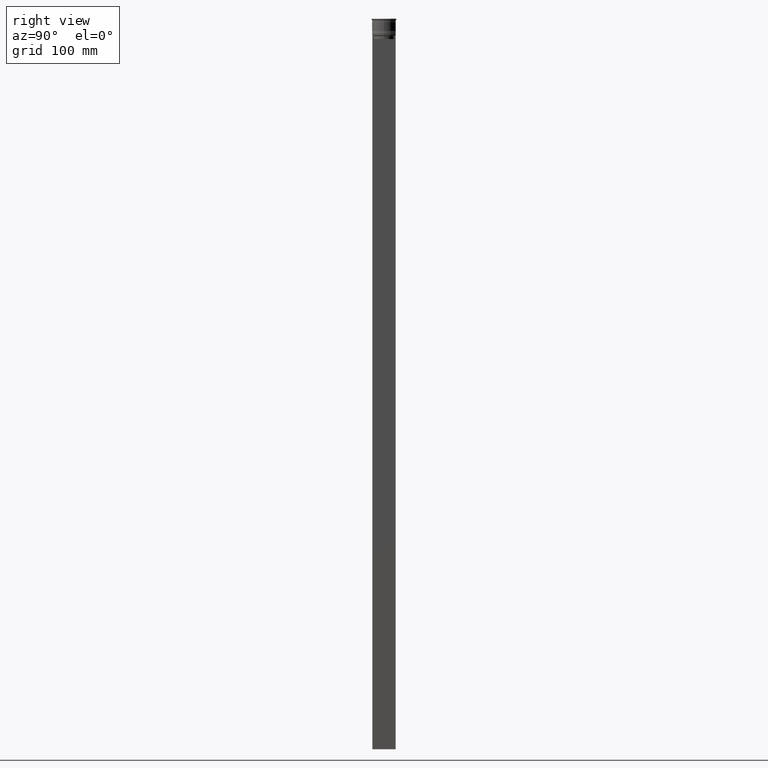
[diagram: clean part render]
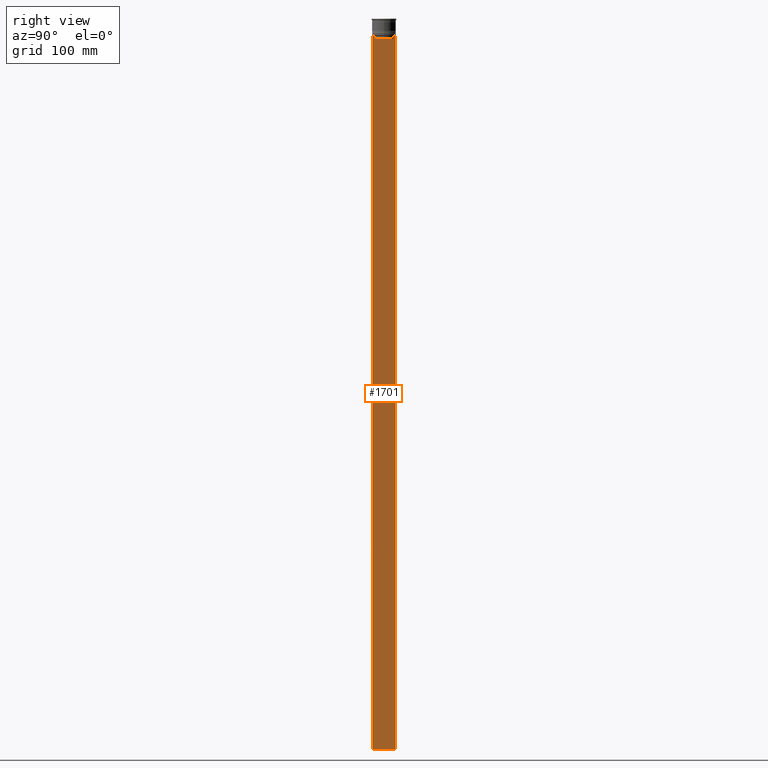
[diagram: same view with one face highlighted and labeled with its STEP entity id]
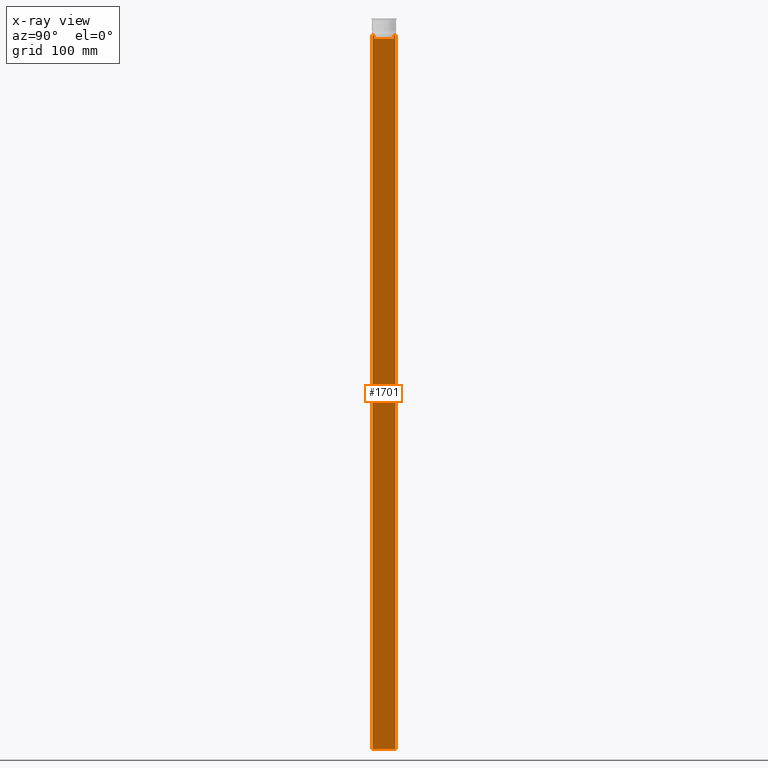
[diagram: x-ray of the same camera — body ghosted, the highlighted face saturated]
A machine part, right view. The second image highlights one B-rep face of the part: STEP entity #1701.
The next image is the same camera in x-ray: the body ghosted, the highlighted face saturated — about 0% of this face is hidden behind the body in this view.
In plain terms, the highlighted planar face has unit normal (-1, 0, 0).
Its self-contained STEP definition (entity closure, byte-faithful):
#9 = DIRECTION ( 'NONE',  ( -0.000000000000000000, -0.000000000000000000, 1.000000000000000000 ) ) ;
#53 = VECTOR ( 'NONE', #2524, 1000.000000000000000 ) ;
#78 = DIRECTION ( 'NONE',  ( 0.000000000000000000, 0.000000000000000000, -1.000000000000000000 ) ) ;
#161 = VECTOR ( 'NONE', #1214, 1000.000000000000000 ) ;
#230 = CARTESIAN_POINT ( 'NONE',  ( 0.4999999999999998890, 8.719005771582347464, -14.16667453442325453 ) ) ;
#248 = EDGE_CURVE ( 'NONE', #2341, #2091, #2024, .T. ) ;
#261 = CARTESIAN_POINT ( 'NONE',  ( 0.4999999999999998890, 9.750000000000001776, 5.525624189766635830 ) ) ;
#342 = CARTESIAN_POINT ( 'NONE',  ( 0.4999999999999998890, -9.749999999999998224, -14.00000000000000178 ) ) ;
#360 = CARTESIAN_POINT ( 'NONE',  ( 0.4999999999999998890, 8.400000000000003908, -17.00000000000000000 ) ) ;
#364 = CARTESIAN_POINT ( 'NONE',  ( 0.4999999999999998890, 9.750000000000001776, -614.0000000000000000 ) ) ;
#386 = LINE ( 'NONE', #1569, #1379 ) ;
#400 = ORIENTED_EDGE ( 'NONE', *, *, #1611, .T. ) ;
#439 = CARTESIAN_POINT ( 'NONE',  ( 0.4999999999999998890, 8.552060201981378285, -14.33334167021640582 ) ) ;
#461 = VERTEX_POINT ( 'NONE', #1830 ) ;
#482 = VERTEX_POINT ( 'NONE', #623 ) ;
#518 = DIRECTION ( 'NONE',  ( 0.000000000000000000, 0.000000000000000000, -1.000000000000000000 ) ) ;
#527 = ORIENTED_EDGE ( 'NONE', *, *, #828, .T. ) ;
#560 = VERTEX_POINT ( 'NONE', #1091 ) ;
#565 = VECTOR ( 'NONE', #2470, 1000.000000000000000 ) ;
#566 = CARTESIAN_POINT ( 'NONE',  ( 0.4999999999999998890, -9.749999999999998224, -614.0000000000000000 ) ) ;
#618 = CARTESIAN_POINT ( 'NONE',  ( 0.4999999999999998890, 8.385105843100616241, -14.50000000000000000 ) ) ;
#623 = CARTESIAN_POINT ( 'NONE',  ( 0.4999999999999998890, 8.885943956609230199, -14.00000000000000178 ) ) ;
#657 = ORIENTED_EDGE ( 'NONE', *, *, #1486, .T. ) ;
#688 = VERTEX_POINT ( 'NONE', #1872 ) ;
#710 = LINE ( 'NONE', #2518, #565 ) ;
#805 = VERTEX_POINT ( 'NONE', #956 ) ;
#828 = EDGE_CURVE ( 'NONE', #1746, #461, #1038, .T. ) ;
#840 = CARTESIAN_POINT ( 'NONE',  ( 0.4999999999999998890, -9.749999999999998224, 5.525624189766635830 ) ) ;
#847 = EDGE_CURVE ( 'NONE', #805, #1746, #992, .T. ) ;
#879 = LINE ( 'NONE', #261, #1712 ) ;
#885 = CARTESIAN_POINT ( 'NONE',  ( 0.4999999999999998890, 8.385105843100616241, 0.000000000000000000 ) ) ;
#917 = ORIENTED_EDGE ( 'NONE', *, *, #1123, .T. ) ;
#927 = ORIENTED_EDGE ( 'NONE', *, *, #2043, .T. ) ;
#947 = ORIENTED_EDGE ( 'NONE', *, *, #1738, .F. ) ;
#956 = CARTESIAN_POINT ( 'NONE',  ( 0.4999999999999998890, -8.385105843100616241, -17.00000000000000000 ) ) ;
#992 = LINE ( 'NONE', #1181, #2332 ) ;
#1024 = PLANE ( 'NONE',  #1127 ) ;
#1034 = DIRECTION ( 'NONE',  ( 0.000000000000000000, 0.000000000000000000, 1.000000000000000000 ) ) ;
#1037 = EDGE_CURVE ( 'NONE', #482, #2225, #1441, .T. ) ;
#1038 = B_SPLINE_CURVE_WITH_KNOTS ( 'NONE', 3,
 ( #1792, #1975, #1194, #2185 ),
 .UNSPECIFIED., .F., .F.,
 ( 4, 4 ),
 ( 0.03898465126933130243, 0.03969388910599658260 ),
 .UNSPECIFIED. ) ;
#1078 = EDGE_CURVE ( 'NONE', #2225, #560, #2503, .T. ) ;
#1084 = ORIENTED_EDGE ( 'NONE', *, *, #1037, .T. ) ;
#1091 = CARTESIAN_POINT ( 'NONE',  ( 0.4999999999999998890, 8.385105843100616241, -17.00000000000000000 ) ) ;
#1123 = EDGE_CURVE ( 'NONE', #461, #2341, #710, .T. ) ;
#1127 = AXIS2_PLACEMENT_3D ( 'NONE', #840, #1645, #1034 ) ;
#1175 = ORIENTED_EDGE ( 'NONE', *, *, #248, .T. ) ;
#1181 = CARTESIAN_POINT ( 'NONE',  ( 0.4999999999999998890, -8.385105843100616241, 0.000000000000000000 ) ) ;
#1194 = CARTESIAN_POINT ( 'NONE',  ( 0.4999999999999998890, -8.719005764482787413, -14.16667454151160044 ) ) ;
#1214 = DIRECTION ( 'NONE',  ( 0.000000000000000000, 0.000000000000000000, -1.000000000000000000 ) ) ;
#1216 = CARTESIAN_POINT ( 'NONE',  ( 0.4999999999999998890, 8.385105843100616241, -14.50000000000000000 ) ) ;
#1255 = VERTEX_POINT ( 'NONE', #364 ) ;
#1379 = VECTOR ( 'NONE', #2404, 1000.000000000000000 ) ;
#1417 = CARTESIAN_POINT ( 'NONE',  ( 0.4999999999999998890, 8.885943956609230199, -14.00000000000000178 ) ) ;
#1424 = VECTOR ( 'NONE', #518, 1000.000000000000000 ) ;
#1441 = B_SPLINE_CURVE_WITH_KNOTS ( 'NONE', 3,
 ( #1417, #230, #439, #1216 ),
 .UNSPECIFIED., .F., .F.,
 ( 4, 4 ),
 ( 0.01511546479386908018, 0.01582316445439079997 ),
 .UNSPECIFIED. ) ;
#1486 = EDGE_CURVE ( 'NONE', #688, #482, #1504, .T. ) ;
#1503 = ORIENTED_EDGE ( 'NONE', *, *, #1078, .T. ) ;
#1504 = LINE ( 'NONE', #342, #53 ) ;
#1569 = CARTESIAN_POINT ( 'NONE',  ( 0.4999999999999998890, -9.749999999999998224, -614.0000000000000000 ) ) ;
#1611 = EDGE_CURVE ( 'NONE', #2091, #1255, #386, .T. ) ;
#1645 = DIRECTION ( 'NONE',  ( -1.000000000000000000, 0.000000000000000000, 0.000000000000000000 ) ) ;
#1701 = ADVANCED_FACE ( 'NONE', ( #2055 ), #1024, .F. ) ;
#1712 = VECTOR ( 'NONE', #78, 1000.000000000000000 ) ;
#1738 = EDGE_CURVE ( 'NONE', #688, #1255, #879, .T. ) ;
#1746 = VERTEX_POINT ( 'NONE', #2284 ) ;
#1792 = CARTESIAN_POINT ( 'NONE',  ( 0.4999999999999998890, -8.385105843100616241, -14.50000000000000000 ) ) ;
#1830 = CARTESIAN_POINT ( 'NONE',  ( 0.4999999999999998890, -8.885943956609230199, -14.00000000000000178 ) ) ;
#1872 = CARTESIAN_POINT ( 'NONE',  ( 0.4999999999999998890, 9.750000000000001776, -14.00000000000000178 ) ) ;
#1922 = ORIENTED_EDGE ( 'NONE', *, *, #847, .T. ) ;
#1929 = VECTOR ( 'NONE', #2168, 1000.000000000000000 ) ;
#1975 = CARTESIAN_POINT ( 'NONE',  ( 0.4999999999999998890, -8.552060194457768105, -14.33334167772667556 ) ) ;
#2024 = LINE ( 'NONE', #2198, #161 ) ;
#2043 = EDGE_CURVE ( 'NONE', #560, #805, #2340, .T. ) ;
#2055 = FACE_OUTER_BOUND ( 'NONE', #2293, .T. ) ;
#2091 = VERTEX_POINT ( 'NONE', #566 ) ;
#2168 = DIRECTION ( 'NONE',  ( 0.000000000000000000, -1.000000000000000000, 0.000000000000000000 ) ) ;
#2185 = CARTESIAN_POINT ( 'NONE',  ( 0.4999999999999998890, -8.885943956609230199, -14.00000000000000178 ) ) ;
#2198 = CARTESIAN_POINT ( 'NONE',  ( 0.4999999999999998890, -9.749999999999998224, 5.525624189766635830 ) ) ;
#2225 = VERTEX_POINT ( 'NONE', #618 ) ;
#2284 = CARTESIAN_POINT ( 'NONE',  ( 0.4999999999999998890, -8.385105843100616241, -14.50000000000000000 ) ) ;
#2293 = EDGE_LOOP ( 'NONE', ( #657, #1084, #1503, #927, #1922, #527, #917, #1175, #400, #947 ) ) ;
#2332 = VECTOR ( 'NONE', #9, 1000.000000000000000 ) ;
#2340 = LINE ( 'NONE', #360, #1929 ) ;
#2341 = VERTEX_POINT ( 'NONE', #2466 ) ;
#2404 = DIRECTION ( 'NONE',  ( 0.000000000000000000, 1.000000000000000000, 0.000000000000000000 ) ) ;
#2466 = CARTESIAN_POINT ( 'NONE',  ( 0.4999999999999998890, -9.749999999999998224, -14.00000000000000178 ) ) ;
#2470 = DIRECTION ( 'NONE',  ( 0.000000000000000000, -1.000000000000000000, 0.000000000000000000 ) ) ;
#2503 = LINE ( 'NONE', #885, #1424 ) ;
#2518 = CARTESIAN_POINT ( 'NONE',  ( 0.4999999999999998890, -9.749999999999998224, -14.00000000000000178 ) ) ;
#2524 = DIRECTION ( 'NONE',  ( 0.000000000000000000, -1.000000000000000000, 0.000000000000000000 ) ) ;